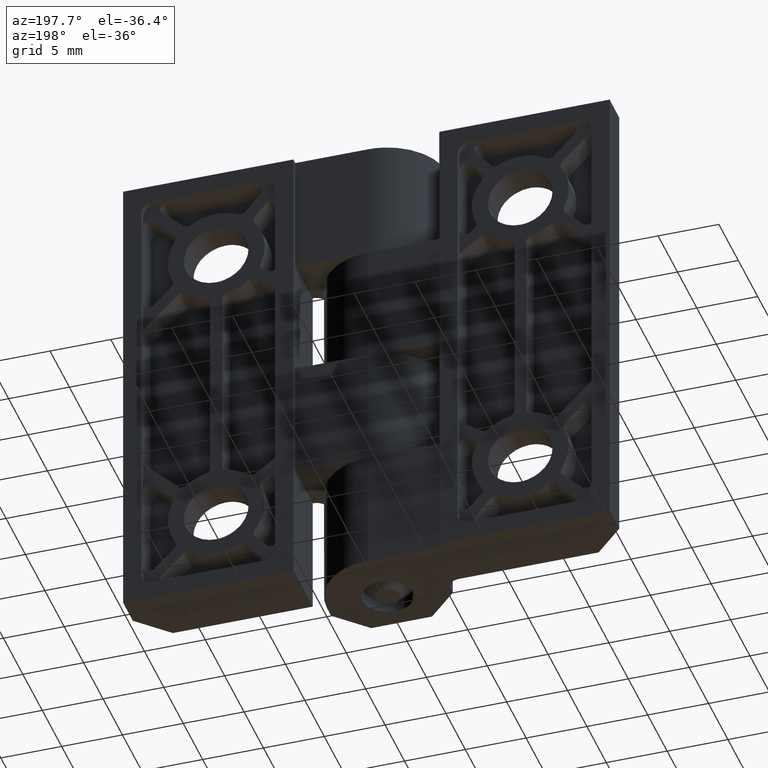
[diagram: clean part render]
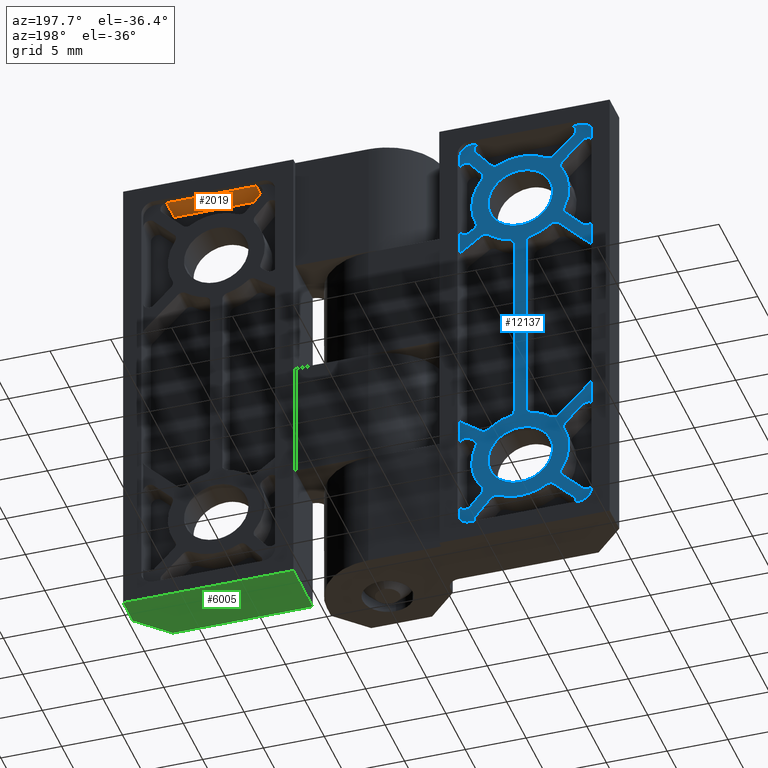
[diagram: same view with three faces highlighted in distinct colors, each labeled with its STEP entity id]
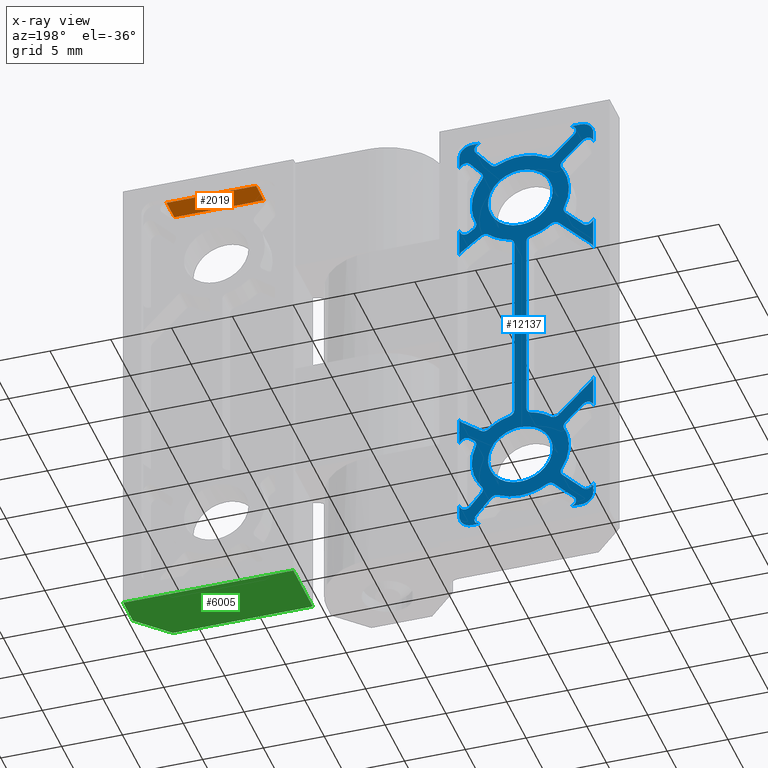
[diagram: x-ray of the same camera — body ghosted, the three highlighted faces saturated]
A machine part, auxiliary view with three faces highlighted in distinct colors.
The next image is the same camera in x-ray (body ghosted, the three faces saturated) — at least one of them is partly hidden behind the body in this view.
Their STEP definitions:

[orange] entity #2019 — the highlighted face is a freeform B-spline surface patch.
#1644=CARTESIAN_POINT('',(16.585786631691398,3.000000261236480,38.499951826151701));
#1645=VERTEX_POINT('',#1644);
#1646=CARTESIAN_POINT('',(9.218374790111112,3.000000261236480,38.499951826151751));
#1647=VERTEX_POINT('',#1646);
#1648=CARTESIAN_POINT('',(16.585786631691398,3.000000261236480,38.499951826151701));
#1649=CARTESIAN_POINT('',(9.218374790111112,3.000000261236480,38.499951826151751));
#1650=QUASI_UNIFORM_CURVE('',1,(#1648,#1649),.UNSPECIFIED.,.F.,.U.);
#1651=EDGE_CURVE('',#1645,#1647,#1650,.T.);
#1765=CARTESIAN_POINT('',(16.585786631691398,5.000000261236480,38.499951826151701));
#1766=VERTEX_POINT('',#1765);
#1790=CARTESIAN_POINT('',(16.585786631691398,3.000000261236480,38.499951826151701));
#1791=CARTESIAN_POINT('',(16.585786631691398,5.000000261236480,38.499951826151701));
#1792=QUASI_UNIFORM_CURVE('',1,(#1790,#1791),.UNSPECIFIED.,.F.,.U.);
#1793=EDGE_CURVE('',#1645,#1766,#1792,.T.);
#1977=CARTESIAN_POINT('',(9.218374790111112,5.000000261236480,38.499951826151751));
#1978=VERTEX_POINT('',#1977);
#1994=CARTESIAN_POINT('',(9.218374790111112,3.000000261236480,38.499951826151751));
#1995=CARTESIAN_POINT('',(9.218374790111112,5.000000261236480,38.499951826151751));
#1996=QUASI_UNIFORM_CURVE('',1,(#1994,#1995),.UNSPECIFIED.,.F.,.U.);
#1997=EDGE_CURVE('',#1647,#1978,#1996,.T.);
#2004=CARTESIAN_POINT('',(16.953789020057261,2.900100220418325,38.499951826151701));
#2005=CARTESIAN_POINT('',(8.850372928703605,2.900100220418325,38.499951826151701));
#2006=CARTESIAN_POINT('',(16.953789020057261,5.099900462987177,38.499951826151701));
#2007=CARTESIAN_POINT('',(8.850372928703605,5.099900462987177,38.499951826151701));
#2008=B_SPLINE_SURFACE_WITH_KNOTS('',1,1,((#2004,#2006),(#2005,#2007)),.UNSPECIFIED.,.F.,.F.,.U.,(2,2),(2,2),(0.0,8.103416091353656),(0.0,2.199800242568852),.UNSPECIFIED.);
#2009=CARTESIAN_POINT('',(9.218374790111112,5.000000261236480,38.499951826151751));
#2010=CARTESIAN_POINT('',(16.585786631691398,5.000000261236480,38.499951826151701));
#2011=QUASI_UNIFORM_CURVE('',1,(#2009,#2010),.UNSPECIFIED.,.F.,.U.);
#2012=EDGE_CURVE('',#1978,#1766,#2011,.T.);
#2013=ORIENTED_EDGE('',*,*,#2012,.T.);
#2014=ORIENTED_EDGE('',*,*,#1793,.F.);
#2015=ORIENTED_EDGE('',*,*,#1651,.T.);
#2016=ORIENTED_EDGE('',*,*,#1997,.T.);
#2017=EDGE_LOOP('',(#2013,#2014,#2015,#2016));
#2018=FACE_OUTER_BOUND('',#2017,.T.);
#2019=ADVANCED_FACE('',(#2018),#2008,.T.);

[blue] entity #12137 — the highlighted face is a freeform B-spline surface patch.
#6423=CARTESIAN_POINT('',(-9.855760772092205,5.000000261235510,32.325360294660051));
#6424=VERTEX_POINT('',#6423);
#6430=CARTESIAN_POINT('',(-12.499999406285960,5.000000261235510,29.850002011512931));
#6431=VERTEX_POINT('',#6430);
#6432=CARTESIAN_POINT('',(-12.499999406285960,5.000000261235510,29.850002011512931));
#6433=CARTESIAN_POINT('',(-10.019248158185874,5.000000261235509,29.850002011512927));
#6434=CARTESIAN_POINT('',(-9.855760772092204,5.000000261235510,32.325360294660051));
#6442=(BOUNDED_CURVE()B_SPLINE_CURVE(2,(#6432,#6433,#6434),.UNSPECIFIED.,.F.,.U.)B_SPLINE_CURVE_WITH_KNOTS((3,3),(0.500000000000000,0.738494527062576),.UNSPECIFIED.)CURVE()GEOMETRIC_REPRESENTATION_ITEM()RATIONAL_B_SPLINE_CURVE((1.0,0.720586281197000,0.974281704159737))REPRESENTATION_ITEM(''));
#6443=EDGE_CURVE('',#6431,#6424,#6442,.T.);
#6445=CARTESIAN_POINT('',(-15.149898034577230,5.000000261235510,32.523126858749450));
#6446=VERTEX_POINT('',#6445);
#6447=CARTESIAN_POINT('',(-15.149898034577227,5.000000261235511,32.523126858749450));
#6448=CARTESIAN_POINT('',(-15.149998938440184,5.000000261235510,32.511564421394922));
#6449=CARTESIAN_POINT('',(-15.149998938440181,5.000000261235510,32.500001543667153));
#6450=CARTESIAN_POINT('',(-15.149998938440183,5.000000261235510,29.850002011512931));
#6451=CARTESIAN_POINT('',(-12.499999406285960,5.000000261235510,29.850002011512931));
#6459=(BOUNDED_CURVE()B_SPLINE_CURVE(2,(#6447,#6448,#6449,#6450,#6451),.UNSPECIFIED.,.F.,.U.)B_SPLINE_CURVE_WITH_KNOTS((3,2,3),(0.248460105652479,0.250000000000000,0.500000000000000),.UNSPECIFIED.)CURVE()GEOMETRIC_REPRESENTATION_ITEM()RATIONAL_B_SPLINE_CURVE((0.996414028071399,0.998195901551688,1.0,0.707106781186548,1.0))REPRESENTATION_ITEM(''));
#6460=EDGE_CURVE('',#6446,#6431,#6459,.T.);
#6570=CARTESIAN_POINT('',(-12.499999406285960,5.000000261235510,35.150001075821379));
#6571=VERTEX_POINT('',#6570);
#6572=CARTESIAN_POINT('',(-12.499999406285960,5.000000261235510,35.150001075821379));
#6573=CARTESIAN_POINT('',(-15.126973650394945,5.000000261235509,35.150001075821372));
#6574=CARTESIAN_POINT('',(-15.149898034577229,5.000000261235510,32.523126858749457));
#6582=(BOUNDED_CURVE()B_SPLINE_CURVE(2,(#6572,#6573,#6574),.UNSPECIFIED.,.F.,.U.)B_SPLINE_CURVE_WITH_KNOTS((3,3),(0.0,0.248460105652479),.UNSPECIFIED.)CURVE()GEOMETRIC_REPRESENTATION_ITEM()RATIONAL_B_SPLINE_CURVE((1.0,0.708910879634860,0.996414028071398))REPRESENTATION_ITEM(''));
#6583=EDGE_CURVE('',#6571,#6446,#6582,.T.);
#6585=CARTESIAN_POINT('',(-9.855760772092205,5.000000261235510,32.325360294660044));
#6586=CARTESIAN_POINT('',(-9.849999874131735,5.000000261235510,32.412585901635296));
#6587=CARTESIAN_POINT('',(-9.849999874131735,5.000000261235510,32.500001543667153));
#6588=CARTESIAN_POINT('',(-9.849999874131735,5.000000261235510,35.150001075821379));
#6589=CARTESIAN_POINT('',(-12.499999406285960,5.000000261235510,35.150001075821379));
#6597=(BOUNDED_CURVE()B_SPLINE_CURVE(2,(#6585,#6586,#6587,#6588,#6589),.UNSPECIFIED.,.F.,.U.)B_SPLINE_CURVE_WITH_KNOTS((3,2,3),(0.738494527062576,0.750000000000000,1.0),.UNSPECIFIED.)CURVE()GEOMETRIC_REPRESENTATION_ITEM()RATIONAL_B_SPLINE_CURVE((0.974281704159736,0.986520499989547,1.0,0.707106781186548,1.0))REPRESENTATION_ITEM(''));
#6598=EDGE_CURVE('',#6424,#6571,#6597,.T.);
#6763=CARTESIAN_POINT('',(-9.855760772092205,5.000000261235510,7.325360294660075));
#6764=VERTEX_POINT('',#6763);
#6770=CARTESIAN_POINT('',(-12.499999406285960,5.000000261235510,4.850002011512955));
#6771=VERTEX_POINT('',#6770);
#6772=CARTESIAN_POINT('',(-12.499999406285960,5.000000261235510,4.850002011512955));
#6773=CARTESIAN_POINT('',(-10.019248158185874,5.000000261235509,4.850002011512955));
#6774=CARTESIAN_POINT('',(-9.855760772092204,5.000000261235510,7.325360294660076));
#6782=(BOUNDED_CURVE()B_SPLINE_CURVE(2,(#6772,#6773,#6774),.UNSPECIFIED.,.F.,.U.)B_SPLINE_CURVE_WITH_KNOTS((3,3),(0.500000000000000,0.738494527062576),.UNSPECIFIED.)CURVE()GEOMETRIC_REPRESENTATION_ITEM()RATIONAL_B_SPLINE_CURVE((1.0,0.720586281197000,0.974281704159737))REPRESENTATION_ITEM(''));
#6783=EDGE_CURVE('',#6771,#6764,#6782,.T.);
#6785=CARTESIAN_POINT('',(-15.149898034577230,5.000000261235510,7.523126858749480));
#6786=VERTEX_POINT('',#6785);
#6787=CARTESIAN_POINT('',(-15.149898034577229,5.000000261235510,7.523126858749480));
#6788=CARTESIAN_POINT('',(-15.149998938440186,5.000000261235511,7.511564421394951));
#6789=CARTESIAN_POINT('',(-15.149998938440181,5.000000261235510,7.500001543667180));
#6790=CARTESIAN_POINT('',(-15.149998938440183,5.000000261235510,4.850002011512956));
#6791=CARTESIAN_POINT('',(-12.499999406285960,5.000000261235510,4.850002011512955));
#6799=(BOUNDED_CURVE()B_SPLINE_CURVE(2,(#6787,#6788,#6789,#6790,#6791),.UNSPECIFIED.,.F.,.U.)B_SPLINE_CURVE_WITH_KNOTS((3,2,3),(0.248460105652479,0.250000000000000,0.500000000000000),.UNSPECIFIED.)CURVE()GEOMETRIC_REPRESENTATION_ITEM()RATIONAL_B_SPLINE_CURVE((0.996414028071398,0.998195901551687,1.0,0.707106781186548,1.0))REPRESENTATION_ITEM(''));
#6800=EDGE_CURVE('',#6786,#6771,#6799,.T.);
#6910=CARTESIAN_POINT('',(-12.499999406285960,5.000000261235510,10.150001075821409));
#6911=VERTEX_POINT('',#6910);
#6912=CARTESIAN_POINT('',(-12.499999406285960,5.000000261235510,10.150001075821409));
#6913=CARTESIAN_POINT('',(-15.126973650394957,5.000000261235509,10.150001075821406));
#6914=CARTESIAN_POINT('',(-15.149898034577229,5.000000261235510,7.523126858749480));
#6922=(BOUNDED_CURVE()B_SPLINE_CURVE(2,(#6912,#6913,#6914),.UNSPECIFIED.,.F.,.U.)B_SPLINE_CURVE_WITH_KNOTS((3,3),(0.0,0.248460105652479),.UNSPECIFIED.)CURVE()GEOMETRIC_REPRESENTATION_ITEM()RATIONAL_B_SPLINE_CURVE((1.0,0.708910879634860,0.996414028071398))REPRESENTATION_ITEM(''));
#6923=EDGE_CURVE('',#6911,#6786,#6922,.T.);
#6925=CARTESIAN_POINT('',(-9.855760772092205,5.000000261235510,7.325360294660075));
#6926=CARTESIAN_POINT('',(-9.849999874131735,5.000000261235510,7.412585901635321));
#6927=CARTESIAN_POINT('',(-9.849999874131735,5.000000261235510,7.500001543667180));
#6928=CARTESIAN_POINT('',(-9.849999874131735,5.000000261235510,10.150001075821406));
#6929=CARTESIAN_POINT('',(-12.499999406285960,5.000000261235510,10.150001075821409));
#6937=(BOUNDED_CURVE()B_SPLINE_CURVE(2,(#6925,#6926,#6927,#6928,#6929),.UNSPECIFIED.,.F.,.U.)B_SPLINE_CURVE_WITH_KNOTS((3,2,3),(0.738494527062576,0.750000000000000,1.0),.UNSPECIFIED.)CURVE()GEOMETRIC_REPRESENTATION_ITEM()RATIONAL_B_SPLINE_CURVE((0.974281704159736,0.986520499989547,1.0,0.707106781186548,1.0))REPRESENTATION_ITEM(''));
#6938=EDGE_CURVE('',#6764,#6911,#6937,.T.);
#7566=CARTESIAN_POINT('',(-8.384110444305001,5.000000261235480,36.658044005814013));
#7567=VERTEX_POINT('',#7566);
#7568=CARTESIAN_POINT('',(-7.499999762512689,5.000000261235480,36.337951790778952));
#7569=VERTEX_POINT('',#7568);
#7570=CARTESIAN_POINT('',(-8.384110444304982,5.000000261235480,36.658044005813991));
#7571=CARTESIAN_POINT('',(-8.159574530088690,5.000000261235480,36.927487102874629));
#7572=CARTESIAN_POINT('',(-7.829787146300674,5.000000261235480,36.808087601950923));
#7573=CARTESIAN_POINT('',(-7.499999762512656,5.000000261235480,36.688688101027232));
#7574=CARTESIAN_POINT('',(-7.499999762512656,5.000000261235480,36.337951790778952));
#7582=(BOUNDED_CURVE()B_SPLINE_CURVE(2,(#7570,#7571,#7572,#7573,#7574),.UNSPECIFIED.,.F.,.U.)B_SPLINE_CURVE_WITH_KNOTS((3,2,3),(0.0,0.500000000000000,1.0),.UNSPECIFIED.)CURVE()GEOMETRIC_REPRESENTATION_ITEM()RATIONAL_B_SPLINE_CURVE((1.0,0.818665152474466,1.0,0.818665152474466,1.0))REPRESENTATION_ITEM(''));
#7583=EDGE_CURVE('',#7567,#7569,#7582,.T.);
#7613=CARTESIAN_POINT('',(-7.499999762512660,5.000000261235480,30.408120219874149));
#7614=VERTEX_POINT('',#7613);
#7615=CARTESIAN_POINT('',(-8.297813748278690,5.000000261235480,30.006489957350251));
#7616=VERTEX_POINT('',#7615);
#7617=CARTESIAN_POINT('',(-7.499999762512652,5.000000261235480,30.408120219874149));
#7618=CARTESIAN_POINT('',(-7.499999762512652,5.000000261235480,30.100044573946821));
#7619=CARTESIAN_POINT('',(-7.775174258721695,5.000000261235480,29.961518041290979));
#7620=CARTESIAN_POINT('',(-8.050348754930738,5.000000261235480,29.822991508635159));
#7621=CARTESIAN_POINT('',(-8.297813748278690,5.000000261235480,30.006489957350251));
#7629=(BOUNDED_CURVE()B_SPLINE_CURVE(2,(#7617,#7618,#7619,#7620,#7621),.UNSPECIFIED.,.F.,.U.)B_SPLINE_CURVE_WITH_KNOTS((3,2,3),(0.0,0.500000000000000,1.0),.UNSPECIFIED.)CURVE()GEOMETRIC_REPRESENTATION_ITEM()RATIONAL_B_SPLINE_CURVE((1.0,0.851366852103748,1.0,0.851366852103748,1.0))REPRESENTATION_ITEM(''));
#7630=EDGE_CURVE('',#7614,#7616,#7629,.T.);
#7660=CARTESIAN_POINT('',(-9.320427463369331,5.000000261235480,34.926999690398603));
#7661=VERTEX_POINT('',#7660);
#7668=CARTESIAN_POINT('',(-8.837849622590928,5.000000261235480,30.891071423009048));
#7669=VERTEX_POINT('',#7668);
#7675=CARTESIAN_POINT('',(-9.320427463369331,5.000000261235480,34.926999690398603));
#7676=CARTESIAN_POINT('',(-7.888742703792310,5.000000261235480,33.051371746964804));
#7677=CARTESIAN_POINT('',(-8.837849622590918,5.000000261235480,30.891071423009048));
#7685=(BOUNDED_CURVE()B_SPLINE_CURVE(2,(#7675,#7676,#7677),.UNSPECIFIED.,.F.,.U.)CURVE()GEOMETRIC_REPRESENTATION_ITEM()QUASI_UNIFORM_CURVE()RATIONAL_B_SPLINE_CURVE((1.0,0.861307175329588,1.0))REPRESENTATION_ITEM(''));
#7686=EDGE_CURVE('',#7661,#7669,#7685,.T.);
#7705=CARTESIAN_POINT('',(-9.307091554334901,5.000000261235480,35.550466673776448));
#7706=VERTEX_POINT('',#7705);
#7707=CARTESIAN_POINT('',(-9.320427463369338,5.000000261235480,34.926999690398603));
#7708=CARTESIAN_POINT('',(-9.562436807753469,5.000000261235479,35.244052369671607));
#7709=CARTESIAN_POINT('',(-9.307091554334901,5.000000261235480,35.550466673776448));
#7717=(BOUNDED_CURVE()B_SPLINE_CURVE(2,(#7707,#7708,#7709),.UNSPECIFIED.,.F.,.U.)CURVE()GEOMETRIC_REPRESENTATION_ITEM()QUASI_UNIFORM_CURVE()RATIONAL_B_SPLINE_CURVE((1.0,0.781735959970853,1.0))REPRESENTATION_ITEM(''));
#7718=EDGE_CURVE('',#7661,#7706,#7717,.T.);
#7735=CARTESIAN_POINT('',(-9.307091554334901,5.000000261235480,35.550466673776448));
#7736=CARTESIAN_POINT('',(-8.384110444305001,5.000000261235480,36.658044005814013));
#7737=QUASI_UNIFORM_CURVE('',1,(#7735,#7736),.UNSPECIFIED.,.F.,.U.);
#7738=EDGE_CURVE('',#7706,#7567,#7737,.T.);
#7751=CARTESIAN_POINT('',(-8.677894787431601,5.000000261235480,30.288324895403051));
#7752=VERTEX_POINT('',#7751);
#7753=CARTESIAN_POINT('',(-8.297813748278690,5.000000261235480,30.006489957350251));
#7754=CARTESIAN_POINT('',(-8.677894787431601,5.000000261235480,30.288324895403051));
#7755=QUASI_UNIFORM_CURVE('',1,(#7753,#7754),.UNSPECIFIED.,.F.,.U.);
#7756=EDGE_CURVE('',#7616,#7752,#7755,.T.);
#7782=CARTESIAN_POINT('',(-8.677894787431601,5.000000261235480,30.288324895403051));
#7783=CARTESIAN_POINT('',(-8.998284901120217,5.000000261235480,30.525898250927764));
#7784=CARTESIAN_POINT('',(-8.837849622590928,5.000000261235480,30.891071423009048));
#7792=(BOUNDED_CURVE()B_SPLINE_CURVE(2,(#7782,#7783,#7784),.UNSPECIFIED.,.F.,.U.)CURVE()GEOMETRIC_REPRESENTATION_ITEM()QUASI_UNIFORM_CURVE()RATIONAL_B_SPLINE_CURVE((1.0,0.781735959969677,1.0))REPRESENTATION_ITEM(''));
#7793=EDGE_CURVE('',#7752,#7669,#7792,.T.);
#7955=CARTESIAN_POINT('',(-9.211303722135449,5.000000261235480,38.499951826151701));
#7956=VERTEX_POINT('',#7955);
#7957=CARTESIAN_POINT('',(-8.834264132071661,5.000000261235480,37.679909589863200));
#7958=VERTEX_POINT('',#7957);
#7959=CARTESIAN_POINT('',(-9.211303722135449,5.000000261235480,38.499951826151687));
#7960=CARTESIAN_POINT('',(-8.895873208709617,5.000000261235480,38.495490519006459));
#7961=CARTESIAN_POINT('',(-8.764091725253694,5.000000261235480,38.208872388596511));
#7962=CARTESIAN_POINT('',(-8.632310241797773,5.000000261235480,37.922254258186591));
#7963=CARTESIAN_POINT('',(-8.834264132071670,5.000000261235480,37.679909589863207));
#7971=(BOUNDED_CURVE()B_SPLINE_CURVE(2,(#7959,#7960,#7961,#7962,#7963),.UNSPECIFIED.,.F.,.U.)B_SPLINE_CURVE_WITH_KNOTS((3,2,3),(0.0,0.500000000000000,1.0),.UNSPECIFIED.)CURVE()GEOMETRIC_REPRESENTATION_ITEM()RATIONAL_B_SPLINE_CURVE((1.0,0.845738859178828,1.0,0.845738859178828,1.0))REPRESENTATION_ITEM(''));
#7972=EDGE_CURVE('',#7956,#7958,#7971,.T.);
#8022=CARTESIAN_POINT('',(-16.939340039077699,5.000000261235480,37.646448397516849));
#8023=VERTEX_POINT('',#8022);
#8024=CARTESIAN_POINT('',(-16.592857699666151,5.000000261235480,38.499951826151701));
#8025=VERTEX_POINT('',#8024);
#8026=CARTESIAN_POINT('',(-16.939340039077699,5.000000261235480,37.646448397516849));
#8027=CARTESIAN_POINT('',(-17.173772988639964,5.000000261235481,37.880881347079409));
#8028=CARTESIAN_POINT('',(-17.049067894781249,5.000000261235480,38.188072257177282));
#8029=CARTESIAN_POINT('',(-16.924362800922530,5.000000261235481,38.495263167275141));
#8030=CARTESIAN_POINT('',(-16.592857699666151,5.000000261235480,38.499951826151687));
#8038=(BOUNDED_CURVE()B_SPLINE_CURVE(2,(#8026,#8027,#8028,#8029,#8030),.UNSPECIFIED.,.F.,.U.)B_SPLINE_CURVE_WITH_KNOTS((3,2,3),(0.0,0.500000000000000,1.0),.UNSPECIFIED.)CURVE()GEOMETRIC_REPRESENTATION_ITEM()RATIONAL_B_SPLINE_CURVE((1.0,0.833428714012474,1.0,0.833428714012474,1.0))REPRESENTATION_ITEM(''));
#8039=EDGE_CURVE('',#8023,#8025,#8038,.T.);
#8078=CARTESIAN_POINT('',(-15.248865151468349,5.000000261235480,35.955973509907700));
#8079=VERTEX_POINT('',#8078);
#8085=CARTESIAN_POINT('',(-16.939340039077699,5.000000261235480,37.646448397516849));
#8086=CARTESIAN_POINT('',(-15.248865151468349,5.000000261235480,35.955973509907700));
#8087=QUASI_UNIFORM_CURVE('',1,(#8085,#8086),.UNSPECIFIED.,.F.,.U.);
#8088=EDGE_CURVE('',#8023,#8079,#8087,.T.);
#8107=CARTESIAN_POINT('',(-14.629165994739880,5.000000261235480,35.886246320224501));
#8108=VERTEX_POINT('',#8107);
#8109=CARTESIAN_POINT('',(-14.629165994739880,5.000000261235480,35.886246320224501));
#8110=CARTESIAN_POINT('',(-14.966827100663364,5.000000261235479,35.673935459102708));
#8111=CARTESIAN_POINT('',(-15.248865151468360,5.000000261235480,35.955973509907693));
#8119=(BOUNDED_CURVE()B_SPLINE_CURVE(2,(#8109,#8110,#8111),.UNSPECIFIED.,.F.,.U.)CURVE()GEOMETRIC_REPRESENTATION_ITEM()QUASI_UNIFORM_CURVE()RATIONAL_B_SPLINE_CURVE((1.0,0.781735959970549,1.0))REPRESENTATION_ITEM(''));
#8120=EDGE_CURVE('',#8108,#8079,#8119,.T.);
#8148=CARTESIAN_POINT('',(-10.686154247524239,5.000000261235480,36.065105343859152));
#8149=VERTEX_POINT('',#8148);
#8155=CARTESIAN_POINT('',(-14.629165994739870,5.000000261235480,35.886246320224480));
#8156=CARTESIAN_POINT('',(-12.708387201172748,5.000000261235480,37.093972624888842));
#8157=CARTESIAN_POINT('',(-10.686154247524209,5.000000261235480,36.065105343859223));
#8165=(BOUNDED_CURVE()B_SPLINE_CURVE(2,(#8155,#8156,#8157),.UNSPECIFIED.,.F.,.U.)CURVE()GEOMETRIC_REPRESENTATION_ITEM()QUASI_UNIFORM_CURVE()RATIONAL_B_SPLINE_CURVE((1.0,0.869812024331090,1.0))REPRESENTATION_ITEM(''));
#8166=EDGE_CURVE('',#8108,#8149,#8165,.T.);
#8185=CARTESIAN_POINT('',(-10.075312870421980,5.000000261235480,36.190651103847152));
#8186=VERTEX_POINT('',#8185);
#8187=CARTESIAN_POINT('',(-10.075312870421991,5.000000261235480,36.190651103847159));
#8188=CARTESIAN_POINT('',(-10.330658123842095,5.000000261235480,35.884236799743348));
#8189=CARTESIAN_POINT('',(-10.686154247524239,5.000000261235480,36.065105343859152));
#8197=(BOUNDED_CURVE()B_SPLINE_CURVE(2,(#8187,#8188,#8189),.UNSPECIFIED.,.F.,.U.)CURVE()GEOMETRIC_REPRESENTATION_ITEM()QUASI_UNIFORM_CURVE()RATIONAL_B_SPLINE_CURVE((1.0,0.781735959970696,1.0))REPRESENTATION_ITEM(''));
#8198=EDGE_CURVE('',#8186,#8149,#8197,.T.);
#8218=CARTESIAN_POINT('',(-10.075312870421980,5.000000261235480,36.190651103847152));
#8219=CARTESIAN_POINT('',(-8.834264132071661,5.000000261235480,37.679909589863200));
#8220=QUASI_UNIFORM_CURVE('',1,(#8218,#8219),.UNSPECIFIED.,.F.,.U.);
#8221=EDGE_CURVE('',#8186,#7958,#8220,.T.);
#8352=CARTESIAN_POINT('',(-17.646446853849049,5.000000261235480,28.767768319363050));
#8353=VERTEX_POINT('',#8352);
#8354=CARTESIAN_POINT('',(-18.500000284984701,5.000000261235480,29.121321726748452));
#8355=VERTEX_POINT('',#8354);
#8356=CARTESIAN_POINT('',(-17.646446853849060,5.000000261235480,28.767768319363061));
#8357=CARTESIAN_POINT('',(-17.882683688027839,5.000000261235480,28.531531485183255));
#8358=CARTESIAN_POINT('',(-18.191341986506291,5.000000261235480,28.659381938551629));
#8359=CARTESIAN_POINT('',(-18.500000284984726,5.000000261235480,28.787232391920014));
#8360=CARTESIAN_POINT('',(-18.500000284984729,5.000000261235480,29.121321726748452));
#8368=(BOUNDED_CURVE()B_SPLINE_CURVE(2,(#8356,#8357,#8358,#8359,#8360),.UNSPECIFIED.,.F.,.U.)B_SPLINE_CURVE_WITH_KNOTS((3,2,3),(0.0,0.500000000000000,1.0),.UNSPECIFIED.)CURVE()GEOMETRIC_REPRESENTATION_ITEM()RATIONAL_B_SPLINE_CURVE((1.0,0.831469612302241,1.0,0.831469612302241,1.0))REPRESENTATION_ITEM(''));
#8369=EDGE_CURVE('',#8353,#8355,#8368,.T.);
#8403=CARTESIAN_POINT('',(-18.500000284984701,5.000000261235480,36.585788175358552));
#8404=VERTEX_POINT('',#8403);
#8405=CARTESIAN_POINT('',(-17.646446894391399,5.000000261235480,36.939341623286147));
#8406=VERTEX_POINT('',#8405);
#8407=CARTESIAN_POINT('',(-18.500000284984729,5.000000261235480,36.585788175358552));
#8408=CARTESIAN_POINT('',(-18.500000284984729,5.000000261235480,36.919877489453597));
#8409=CARTESIAN_POINT('',(-18.191342012991800,5.000000261235480,37.047727952584708));
#8410=CARTESIAN_POINT('',(-17.882683740998878,5.000000261235480,37.175578415715826));
#8411=CARTESIAN_POINT('',(-17.646446894391339,5.000000261235480,36.939341623286211));
#8419=(BOUNDED_CURVE()B_SPLINE_CURVE(2,(#8407,#8408,#8409,#8410,#8411),.UNSPECIFIED.,.F.,.U.)B_SPLINE_CURVE_WITH_KNOTS((3,2,3),(0.0,0.500000000000000,1.0),.UNSPECIFIED.)CURVE()GEOMETRIC_REPRESENTATION_ITEM()RATIONAL_B_SPLINE_CURVE((1.0,0.831469628229170,1.0,0.831469628229170,1.0))REPRESENTATION_ITEM(''));
#8420=EDGE_CURVE('',#8404,#8406,#8419,.T.);
#8441=CARTESIAN_POINT('',(-16.207106957265601,5.000000261235510,30.207108215948050));
#8442=VERTEX_POINT('',#8441);
#8443=CARTESIAN_POINT('',(-16.207106957265601,5.000000261235510,30.207108215948050));
#8444=CARTESIAN_POINT('',(-17.646446853849049,5.000000261235480,28.767768319363050));
#8445=QUASI_UNIFORM_CURVE('',1,(#8443,#8444),.UNSPECIFIED.,.F.,.U.);
#8446=EDGE_CURVE('',#8442,#8353,#8445,.T.);
#8463=CARTESIAN_POINT('',(-15.955971952844800,5.000000261235480,35.248866681739443));
#8464=VERTEX_POINT('',#8463);
#8465=CARTESIAN_POINT('',(-17.646446894391399,5.000000261235480,36.939341623286147));
#8466=CARTESIAN_POINT('',(-15.955971952844800,5.000000261235480,35.248866681739443));
#8467=QUASI_UNIFORM_CURVE('',1,(#8465,#8466),.UNSPECIFIED.,.F.,.U.);
#8468=EDGE_CURVE('',#8406,#8464,#8467,.T.);
#8494=CARTESIAN_POINT('',(-15.886244767593650,5.000000261235480,34.629167552662949));
#8495=VERTEX_POINT('',#8494);
#8496=CARTESIAN_POINT('',(-15.955971952844800,5.000000261235480,35.248866681739443));
#8497=CARTESIAN_POINT('',(-15.673933914218130,5.000000261235480,34.966828643112727));
#8498=CARTESIAN_POINT('',(-15.886244767593650,5.000000261235480,34.629167552662949));
#8506=(BOUNDED_CURVE()B_SPLINE_CURVE(2,(#8496,#8497,#8498),.UNSPECIFIED.,.F.,.U.)CURVE()GEOMETRIC_REPRESENTATION_ITEM()QUASI_UNIFORM_CURVE()RATIONAL_B_SPLINE_CURVE((1.0,0.781735958657899,1.0))REPRESENTATION_ITEM(''));
#8507=EDGE_CURVE('',#8464,#8495,#8506,.T.);
#8533=CARTESIAN_POINT('',(-16.109475879689700,5.000000261235480,30.776143836703898));
#8534=VERTEX_POINT('',#8533);
#8542=CARTESIAN_POINT('',(-16.109475879689711,5.000000261235480,30.776143836703898));
#8543=CARTESIAN_POINT('',(-17.058922686209563,5.000000261235480,32.764130045390957));
#8544=CARTESIAN_POINT('',(-15.886244767593640,5.000000261235480,34.629167552662949));
#8552=(BOUNDED_CURVE()B_SPLINE_CURVE(2,(#8542,#8543,#8544),.UNSPECIFIED.,.F.,.U.)CURVE()GEOMETRIC_REPRESENTATION_ITEM()QUASI_UNIFORM_CURVE()RATIONAL_B_SPLINE_CURVE((1.0,0.875931446463721,1.0))REPRESENTATION_ITEM(''));
#8553=EDGE_CURVE('',#8534,#8495,#8552,.T.);
#8572=CARTESIAN_POINT('',(-16.109475879689700,5.000000261235480,30.776143836703898));
#8573=CARTESIAN_POINT('',(-15.957106945390480,5.000000261235479,30.457108227821635));
#8574=CARTESIAN_POINT('',(-16.207106957265601,5.000000261235510,30.207108215948050));
#8582=(BOUNDED_CURVE()B_SPLINE_CURVE(2,(#8572,#8573,#8574),.UNSPECIFIED.,.F.,.U.)CURVE()GEOMETRIC_REPRESENTATION_ITEM()QUASI_UNIFORM_CURVE()RATIONAL_B_SPLINE_CURVE((1.0,0.816496580927737,1.0))REPRESENTATION_ITEM(''));
#8583=EDGE_CURVE('',#8534,#8442,#8582,.T.);
#8761=CARTESIAN_POINT('',(-7.499999762512689,5.000000261235480,12.081684120187200));
#8762=VERTEX_POINT('',#8761);
#8763=CARTESIAN_POINT('',(-7.702185814639230,5.000000261235480,11.680053876739279));
#8764=VERTEX_POINT('',#8763);
#8765=CARTESIAN_POINT('',(-7.499999762512688,5.000000261235480,12.081684120187200));
#8766=CARTESIAN_POINT('',(-7.499999762512688,5.000000261235480,11.829977413054259));
#8767=CARTESIAN_POINT('',(-7.702185814639236,5.000000261235480,11.680053876739290));
#8775=(BOUNDED_CURVE()B_SPLINE_CURVE(2,(#8765,#8766,#8767),.UNSPECIFIED.,.F.,.U.)CURVE()GEOMETRIC_REPRESENTATION_ITEM()QUASI_UNIFORM_CURVE()RATIONAL_B_SPLINE_CURVE((1.0,0.893204314741847,1.0))REPRESENTATION_ITEM(''));
#8776=EDGE_CURVE('',#8762,#8764,#8775,.T.);
#8806=CARTESIAN_POINT('',(-7.702185814639210,5.000000261235480,28.319848018158449));
#8807=VERTEX_POINT('',#8806);
#8808=CARTESIAN_POINT('',(-7.499999762512670,5.000000261235480,27.918217774710548));
#8809=VERTEX_POINT('',#8808);
#8810=CARTESIAN_POINT('',(-7.702185814639207,5.000000261235480,28.319848018158460));
#8811=CARTESIAN_POINT('',(-7.499999762512670,5.000000261235480,28.169924481843477));
#8812=CARTESIAN_POINT('',(-7.499999762512670,5.000000261235480,27.918217774710548));
#8820=(BOUNDED_CURVE()B_SPLINE_CURVE(2,(#8810,#8811,#8812),.UNSPECIFIED.,.F.,.U.)CURVE()GEOMETRIC_REPRESENTATION_ITEM()QUASI_UNIFORM_CURVE()RATIONAL_B_SPLINE_CURVE((1.0,0.893204314741853,1.0))REPRESENTATION_ITEM(''));
#8821=EDGE_CURVE('',#8807,#8809,#8820,.T.);
#8851=CARTESIAN_POINT('',(-11.611111085309959,5.000000261235480,11.399934714886500));
#8852=VERTEX_POINT('',#8851);
#8853=CARTESIAN_POINT('',(-11.999999976251200,5.000000261235480,11.887432736876059));
#8854=VERTEX_POINT('',#8853);
#8855=CARTESIAN_POINT('',(-11.611111085309959,5.000000261235480,11.399934714886500));
#8856=CARTESIAN_POINT('',(-11.999999976251200,5.000000261235480,11.488570717545068));
#8857=CARTESIAN_POINT('',(-11.999999976251200,5.000000261235480,11.887432736876059));
#8865=(BOUNDED_CURVE()B_SPLINE_CURVE(2,(#8855,#8856,#8857),.UNSPECIFIED.,.F.,.U.)CURVE()GEOMETRIC_REPRESENTATION_ITEM()QUASI_UNIFORM_CURVE()RATIONAL_B_SPLINE_CURVE((1.0,0.781735958657884,1.0))REPRESENTATION_ITEM(''));
#8866=EDGE_CURVE('',#8852,#8854,#8865,.T.);
#8898=CARTESIAN_POINT('',(-9.896743696986249,5.000000261235480,10.536899174626081));
#8899=VERTEX_POINT('',#8898);
#8905=CARTESIAN_POINT('',(-11.611111085309959,5.000000261235480,11.399934714886509));
#8906=CARTESIAN_POINT('',(-10.647283724101190,5.000000261235480,11.180258075773132));
#8907=CARTESIAN_POINT('',(-9.896743696986253,5.000000261235480,10.536899174626081));
#8915=(BOUNDED_CURVE()B_SPLINE_CURVE(2,(#8905,#8906,#8907),.UNSPECIFIED.,.F.,.U.)CURVE()GEOMETRIC_REPRESENTATION_ITEM()QUASI_UNIFORM_CURVE()RATIONAL_B_SPLINE_CURVE((1.0,0.970793123430929,1.0))REPRESENTATION_ITEM(''));
#8916=EDGE_CURVE('',#8852,#8899,#8915,.T.);
#8935=CARTESIAN_POINT('',(-9.273522726692089,5.000000261235480,10.514887515759160));
#8936=VERTEX_POINT('',#8935);
#8937=CARTESIAN_POINT('',(-9.273522726692104,5.000000261235480,10.514887515759179));
#8938=CARTESIAN_POINT('',(-9.593912826543638,5.000000261235480,10.277314170492108));
#8939=CARTESIAN_POINT('',(-9.896743696986244,5.000000261235480,10.536899174626090));
#8947=(BOUNDED_CURVE()B_SPLINE_CURVE(2,(#8937,#8938,#8939),.UNSPECIFIED.,.F.,.U.)CURVE()GEOMETRIC_REPRESENTATION_ITEM()QUASI_UNIFORM_CURVE()RATIONAL_B_SPLINE_CURVE((1.0,0.781735958658393,1.0))REPRESENTATION_ITEM(''));
#8948=EDGE_CURVE('',#8936,#8899,#8947,.T.);
#8968=CARTESIAN_POINT('',(-9.273522726692089,5.000000261235480,10.514887515759160));
#8969=CARTESIAN_POINT('',(-7.702185814639230,5.000000261235480,11.680053876739279));
#8970=QUASI_UNIFORM_CURVE('',1,(#8968,#8969),.UNSPECIFIED.,.F.,.U.);
#8971=EDGE_CURVE('',#8936,#8764,#8970,.T.);
#8983=CARTESIAN_POINT('',(-9.273522726692050,5.000000261235480,29.485014379138601));
#8984=VERTEX_POINT('',#8983);
#8990=CARTESIAN_POINT('',(-7.702185814639210,5.000000261235480,28.319848018158449));
#8991=CARTESIAN_POINT('',(-9.273522726692050,5.000000261235480,29.485014379138601));
#8992=QUASI_UNIFORM_CURVE('',1,(#8990,#8991),.UNSPECIFIED.,.F.,.U.);
#8993=EDGE_CURVE('',#8807,#8984,#8992,.T.);
#9012=CARTESIAN_POINT('',(-9.896743696986238,5.000000261235480,29.463002720271700));
#9013=VERTEX_POINT('',#9012);
#9014=CARTESIAN_POINT('',(-9.896743696986233,5.000000261235480,29.463002720271700));
#9015=CARTESIAN_POINT('',(-9.593912826543608,5.000000261235480,29.722587724405720));
#9016=CARTESIAN_POINT('',(-9.273522726692047,5.000000261235480,29.485014379138612));
#9024=(BOUNDED_CURVE()B_SPLINE_CURVE(2,(#9014,#9015,#9016),.UNSPECIFIED.,.F.,.U.)CURVE()GEOMETRIC_REPRESENTATION_ITEM()QUASI_UNIFORM_CURVE()RATIONAL_B_SPLINE_CURVE((1.0,0.781735958658354,1.0))REPRESENTATION_ITEM(''));
#9025=EDGE_CURVE('',#9013,#8984,#9024,.T.);
#9053=CARTESIAN_POINT('',(-11.611111085309959,5.000000261235480,28.599967180011252));
#9054=VERTEX_POINT('',#9053);
#9060=CARTESIAN_POINT('',(-9.896743696986224,5.000000261235480,29.463002720271689));
#9061=CARTESIAN_POINT('',(-10.647283724101159,5.000000261235480,28.819643819124614));
#9062=CARTESIAN_POINT('',(-11.611111085309959,5.000000261235480,28.599967180011230));
#9070=(BOUNDED_CURVE()B_SPLINE_CURVE(2,(#9060,#9061,#9062),.UNSPECIFIED.,.F.,.U.)CURVE()GEOMETRIC_REPRESENTATION_ITEM()QUASI_UNIFORM_CURVE()RATIONAL_B_SPLINE_CURVE((1.0,0.970793123430928,1.0))REPRESENTATION_ITEM(''));
#9071=EDGE_CURVE('',#9013,#9054,#9070,.T.);
#9090=CARTESIAN_POINT('',(-11.999999976251200,5.000000261235480,28.112469158021700));
#9091=VERTEX_POINT('',#9090);
#9092=CARTESIAN_POINT('',(-11.999999976251200,5.000000261235480,28.112469158021700));
#9093=CARTESIAN_POINT('',(-11.999999976251200,5.000000261235480,28.511331177352684));
#9094=CARTESIAN_POINT('',(-11.611111085309959,5.000000261235480,28.599967180011259));
#9102=(BOUNDED_CURVE()B_SPLINE_CURVE(2,(#9092,#9093,#9094),.UNSPECIFIED.,.F.,.U.)CURVE()GEOMETRIC_REPRESENTATION_ITEM()QUASI_UNIFORM_CURVE()RATIONAL_B_SPLINE_CURVE((1.0,0.781735958657885,1.0))REPRESENTATION_ITEM(''));
#9103=EDGE_CURVE('',#9091,#9054,#9102,.T.);
#9123=CARTESIAN_POINT('',(-11.999999976251200,5.000000261235480,28.112469158021700));
#9124=CARTESIAN_POINT('',(-11.999999976251200,5.000000261235480,11.887432736876059));
#9125=QUASI_UNIFORM_CURVE('',1,(#9123,#9124),.UNSPECIFIED.,.F.,.U.);
#9126=EDGE_CURVE('',#9091,#8854,#9125,.T.);
#9301=CARTESIAN_POINT('',(-18.353553675577949,5.000000261235480,13.353504029312720));
#9302=VERTEX_POINT('',#9301);
#9303=CARTESIAN_POINT('',(-18.500000284984701,5.000000261235480,13.707057419906000));
#9304=VERTEX_POINT('',#9303);
#9305=CARTESIAN_POINT('',(-18.353553675577938,5.000000261235480,13.353504029312740));
#9306=CARTESIAN_POINT('',(-18.500000284984662,5.000000261235480,13.499950638719458));
#9307=CARTESIAN_POINT('',(-18.500000284984662,5.000000261235480,13.707057419906000));
#9315=(BOUNDED_CURVE()B_SPLINE_CURVE(2,(#9305,#9306,#9307),.UNSPECIFIED.,.F.,.U.)CURVE()GEOMETRIC_REPRESENTATION_ITEM()QUASI_UNIFORM_CURVE()RATIONAL_B_SPLINE_CURVE((1.0,0.923879532511293,1.0))REPRESENTATION_ITEM(''));
#9316=EDGE_CURVE('',#9302,#9304,#9315,.T.);
#9346=CARTESIAN_POINT('',(-18.500000284984662,5.000000261235480,26.292844474991799));
#9347=VERTEX_POINT('',#9346);
#9348=CARTESIAN_POINT('',(-18.353553675577949,5.000000261235480,26.646397865585051));
#9349=VERTEX_POINT('',#9348);
#9350=CARTESIAN_POINT('',(-18.500000284984662,5.000000261235480,26.292844474991799));
#9351=CARTESIAN_POINT('',(-18.500000284984658,5.000000261235479,26.499951256178328));
#9352=CARTESIAN_POINT('',(-18.353553675577949,5.000000261235480,26.646397865585051));
#9360=(BOUNDED_CURVE()B_SPLINE_CURVE(2,(#9350,#9351,#9352),.UNSPECIFIED.,.F.,.U.)CURVE()GEOMETRIC_REPRESENTATION_ITEM()QUASI_UNIFORM_CURVE()RATIONAL_B_SPLINE_CURVE((1.0,0.923879532511301,1.0))REPRESENTATION_ITEM(''));
#9361=EDGE_CURVE('',#9347,#9349,#9360,.T.);
#9391=CARTESIAN_POINT('',(-14.996643928512000,5.000000261235480,10.625133646618121));
#9392=VERTEX_POINT('',#9391);
#9399=CARTESIAN_POINT('',(-13.388888914689939,5.000000261235480,11.399934714886520));
#9400=VERTEX_POINT('',#9399);
#9406=CARTESIAN_POINT('',(-14.996643928512009,5.000000261235480,10.625133646618140));
#9407=CARTESIAN_POINT('',(-14.281425537195629,5.000000261235480,11.196506742815133));
#9408=CARTESIAN_POINT('',(-13.388888914689939,5.000000261235480,11.399934714886530));
#9416=(BOUNDED_CURVE()B_SPLINE_CURVE(2,(#9406,#9407,#9408),.UNSPECIFIED.,.F.,.U.)CURVE()GEOMETRIC_REPRESENTATION_ITEM()QUASI_UNIFORM_CURVE()RATIONAL_B_SPLINE_CURVE((1.0,0.974798115498771,1.0))REPRESENTATION_ITEM(''));
#9417=EDGE_CURVE('',#9392,#9400,#9416,.T.);
#9436=CARTESIAN_POINT('',(-15.662277795346251,5.000000261235480,10.662228149081001));
#9437=VERTEX_POINT('',#9436);
#9438=CARTESIAN_POINT('',(-14.996643928512031,5.000000261235480,10.625133646618149));
#9439=CARTESIAN_POINT('',(-15.346050027827623,5.000000261235479,10.346000381562408));
#9440=CARTESIAN_POINT('',(-15.662277795346251,5.000000261235480,10.662228149081001));
#9448=(BOUNDED_CURVE()B_SPLINE_CURVE(2,(#9438,#9439,#9440),.UNSPECIFIED.,.F.,.U.)CURVE()GEOMETRIC_REPRESENTATION_ITEM()QUASI_UNIFORM_CURVE()RATIONAL_B_SPLINE_CURVE((1.0,0.745355990926720,1.0))REPRESENTATION_ITEM(''));
#9449=EDGE_CURVE('',#9392,#9437,#9448,.T.);
#9466=CARTESIAN_POINT('',(-15.662277795346251,5.000000261235480,10.662228149081001));
#9467=CARTESIAN_POINT('',(-18.353553675577949,5.000000261235480,13.353504029312720));
#9468=QUASI_UNIFORM_CURVE('',1,(#9466,#9467),.UNSPECIFIED.,.F.,.U.);
#9469=EDGE_CURVE('',#9437,#9302,#9468,.T.);
#9482=CARTESIAN_POINT('',(-15.662277795346251,5.000000261235480,29.337673745816751));
#9483=VERTEX_POINT('',#9482);
#9484=CARTESIAN_POINT('',(-18.353553675577949,5.000000261235480,26.646397865585051));
#9485=CARTESIAN_POINT('',(-15.662277795346251,5.000000261235480,29.337673745816751));
#9486=QUASI_UNIFORM_CURVE('',1,(#9484,#9485),.UNSPECIFIED.,.F.,.U.);
#9487=EDGE_CURVE('',#9349,#9483,#9486,.T.);
#9513=CARTESIAN_POINT('',(-14.996643928512020,5.000000261235480,29.374768248279601));
#9514=VERTEX_POINT('',#9513);
#9515=CARTESIAN_POINT('',(-15.662277795346251,5.000000261235480,29.337673745816751));
#9516=CARTESIAN_POINT('',(-15.346050027827619,5.000000261235480,29.653901513335342));
#9517=CARTESIAN_POINT('',(-14.996643928512020,5.000000261235480,29.374768248279601));
#9525=(BOUNDED_CURVE()B_SPLINE_CURVE(2,(#9515,#9516,#9517),.UNSPECIFIED.,.F.,.U.)CURVE()GEOMETRIC_REPRESENTATION_ITEM()QUASI_UNIFORM_CURVE()RATIONAL_B_SPLINE_CURVE((1.0,0.745355990926718,1.0))REPRESENTATION_ITEM(''));
#9526=EDGE_CURVE('',#9483,#9514,#9525,.T.);
#9552=CARTESIAN_POINT('',(-13.388888914689939,5.000000261235480,28.599967180011198));
#9553=VERTEX_POINT('',#9552);
#9561=CARTESIAN_POINT('',(-13.388888914689939,5.000000261235480,28.599967180011209));
#9562=CARTESIAN_POINT('',(-14.281425537195624,5.000000261235480,28.803395152082611));
#9563=CARTESIAN_POINT('',(-14.996643928512020,5.000000261235480,29.374768248279601));
#9571=(BOUNDED_CURVE()B_SPLINE_CURVE(2,(#9561,#9562,#9563),.UNSPECIFIED.,.F.,.U.)CURVE()GEOMETRIC_REPRESENTATION_ITEM()QUASI_UNIFORM_CURVE()RATIONAL_B_SPLINE_CURVE((1.0,0.974798115498771,1.0))REPRESENTATION_ITEM(''));
#9572=EDGE_CURVE('',#9553,#9514,#9571,.T.);
#9591=CARTESIAN_POINT('',(-13.000000023748701,5.000000261235480,28.112469158021650));
#9592=VERTEX_POINT('',#9591);
#9593=CARTESIAN_POINT('',(-13.388888914689939,5.000000261235480,28.599967180011209));
#9594=CARTESIAN_POINT('',(-13.000000023748701,5.000000261235479,28.511331177352648));
#9595=CARTESIAN_POINT('',(-13.000000023748701,5.000000261235480,28.112469158021650));
#9603=(BOUNDED_CURVE()B_SPLINE_CURVE(2,(#9593,#9594,#9595),.UNSPECIFIED.,.F.,.U.)CURVE()GEOMETRIC_REPRESENTATION_ITEM()QUASI_UNIFORM_CURVE()RATIONAL_B_SPLINE_CURVE((1.0,0.781735958657884,1.0))REPRESENTATION_ITEM(''));
#9604=EDGE_CURVE('',#9553,#9592,#9603,.T.);
#9621=CARTESIAN_POINT('',(-13.000000023748701,5.000000261235480,11.887432736876100));
#9622=VERTEX_POINT('',#9621);
#9623=CARTESIAN_POINT('',(-13.000000023748701,5.000000261235480,28.112469158021650));
#9624=CARTESIAN_POINT('',(-13.000000023748701,5.000000261235480,11.887432736876100));
#9625=QUASI_UNIFORM_CURVE('',1,(#9623,#9624),.UNSPECIFIED.,.F.,.U.);
#9626=EDGE_CURVE('',#9592,#9622,#9625,.T.);
#9652=CARTESIAN_POINT('',(-13.000000023748701,5.000000261235480,11.887432736876100));
#9653=CARTESIAN_POINT('',(-13.000000023748697,5.000000261235480,11.488570717545104));
#9654=CARTESIAN_POINT('',(-13.388888914689950,5.000000261235480,11.399934714886539));
#9662=(BOUNDED_CURVE()B_SPLINE_CURVE(2,(#9652,#9653,#9654),.UNSPECIFIED.,.F.,.U.)CURVE()GEOMETRIC_REPRESENTATION_ITEM()QUASI_UNIFORM_CURVE()RATIONAL_B_SPLINE_CURVE((1.0,0.781735958657880,1.0))REPRESENTATION_ITEM(''));
#9663=EDGE_CURVE('',#9622,#9400,#9662,.T.);
#9797=CARTESIAN_POINT('',(-18.500000284984701,5.000000261235480,10.878630227980841));
#9798=VERTEX_POINT('',#9797);
#9799=CARTESIAN_POINT('',(-17.646446894391602,5.000000261235480,11.232183618574300));
#9800=VERTEX_POINT('',#9799);
#9801=CARTESIAN_POINT('',(-18.500000284984701,5.000000261235480,10.878630227980841));
#9802=CARTESIAN_POINT('',(-18.500000284984704,5.000000261235480,11.212719546940397));
#9803=CARTESIAN_POINT('',(-18.191342001167360,5.000000261235480,11.340569994236430));
#9804=CARTESIAN_POINT('',(-17.882683717350027,5.000000261235480,11.468420441532471));
#9805=CARTESIAN_POINT('',(-17.646446894391609,5.000000261235480,11.232183618574290));
#9813=(BOUNDED_CURVE()B_SPLINE_CURVE(2,(#9801,#9802,#9803,#9804,#9805),.UNSPECIFIED.,.F.,.U.)B_SPLINE_CURVE_WITH_KNOTS((3,2,3),(0.0,0.500000000000000,1.0),.UNSPECIFIED.)CURVE()GEOMETRIC_REPRESENTATION_ITEM()RATIONAL_B_SPLINE_CURVE((1.0,0.831469612302616,1.0,0.831469612302616,1.0))REPRESENTATION_ITEM(''));
#9814=EDGE_CURVE('',#9798,#9800,#9813,.T.);
#9848=CARTESIAN_POINT('',(-17.646446894391399,5.000000261235480,3.060610274111760));
#9849=VERTEX_POINT('',#9848);
#9850=CARTESIAN_POINT('',(-18.500000284984701,5.000000261235480,3.414163664705035));
#9851=VERTEX_POINT('',#9850);
#9852=CARTESIAN_POINT('',(-17.646446894391410,5.000000261235480,3.060610274111774));
#9853=CARTESIAN_POINT('',(-17.882683717349778,5.000000261235480,2.824373451153397));
#9854=CARTESIAN_POINT('',(-18.191342001167239,5.000000261235480,2.952223898449388));
#9855=CARTESIAN_POINT('',(-18.500000284984704,5.000000261235480,3.080074345745379));
#9856=CARTESIAN_POINT('',(-18.500000284984701,5.000000261235480,3.414163664705035));
#9864=(BOUNDED_CURVE()B_SPLINE_CURVE(2,(#9852,#9853,#9854,#9855,#9856),.UNSPECIFIED.,.F.,.U.)B_SPLINE_CURVE_WITH_KNOTS((3,2,3),(0.0,0.500000000000000,1.0),.UNSPECIFIED.)CURVE()GEOMETRIC_REPRESENTATION_ITEM()RATIONAL_B_SPLINE_CURVE((1.0,0.831469612302540,1.0,0.831469612302540,1.0))REPRESENTATION_ITEM(''));
#9865=EDGE_CURVE('',#9849,#9851,#9864,.T.);
#9895=CARTESIAN_POINT('',(-16.207106945391100,5.000000261235480,9.792843669575349));
#9896=VERTEX_POINT('',#9895);
#9897=CARTESIAN_POINT('',(-16.109475873257150,5.000000261235480,9.223808074162740));
#9898=VERTEX_POINT('',#9897);
#9899=CARTESIAN_POINT('',(-16.207106945391079,5.000000261235480,9.792843669575369));
#9900=CARTESIAN_POINT('',(-15.957106944401321,5.000000261235480,9.542843668585901));
#9901=CARTESIAN_POINT('',(-16.109475873257129,5.000000261235480,9.223808074162728));
#9909=(BOUNDED_CURVE()B_SPLINE_CURVE(2,(#9899,#9900,#9901),.UNSPECIFIED.,.F.,.U.)CURVE()GEOMETRIC_REPRESENTATION_ITEM()QUASI_UNIFORM_CURVE()RATIONAL_B_SPLINE_CURVE((1.0,0.816496579850374,1.0))REPRESENTATION_ITEM(''));
#9910=EDGE_CURVE('',#9896,#9898,#9909,.T.);
#9934=CARTESIAN_POINT('',(-16.207106945391100,5.000000261235480,9.792843669575349));
#9935=CARTESIAN_POINT('',(-17.646446894391602,5.000000261235480,11.232183618574300));
#9936=QUASI_UNIFORM_CURVE('',1,(#9934,#9935),.UNSPECIFIED.,.F.,.U.);
#9937=EDGE_CURVE('',#9896,#9800,#9936,.T.);
#9949=CARTESIAN_POINT('',(-15.955971952844800,5.000000261235480,4.751085215658430));
#9950=VERTEX_POINT('',#9949);
#9956=CARTESIAN_POINT('',(-17.646446894391399,5.000000261235480,3.060610274111760));
#9957=CARTESIAN_POINT('',(-15.955971952844800,5.000000261235480,4.751085215658430));
#9958=QUASI_UNIFORM_CURVE('',1,(#9956,#9957),.UNSPECIFIED.,.F.,.U.);
#9959=EDGE_CURVE('',#9849,#9950,#9958,.T.);
#9978=CARTESIAN_POINT('',(-15.886244767593650,5.000000261235480,5.370784344734931));
#9979=VERTEX_POINT('',#9978);
#9980=CARTESIAN_POINT('',(-15.886244767593650,5.000000261235480,5.370784344734936));
#9981=CARTESIAN_POINT('',(-15.673933914218129,5.000000261235479,5.033123254285142));
#9982=CARTESIAN_POINT('',(-15.955971952844809,5.000000261235480,4.751085215658439));
#9990=(BOUNDED_CURVE()B_SPLINE_CURVE(2,(#9980,#9981,#9982),.UNSPECIFIED.,.F.,.U.)CURVE()GEOMETRIC_REPRESENTATION_ITEM()QUASI_UNIFORM_CURVE()RATIONAL_B_SPLINE_CURVE((1.0,0.781735958657897,1.0))REPRESENTATION_ITEM(''));
#9991=EDGE_CURVE('',#9979,#9950,#9990,.T.);
#10020=CARTESIAN_POINT('',(-15.886244767593640,5.000000261235480,5.370784344734941));
#10021=CARTESIAN_POINT('',(-17.058922691387085,5.000000261235480,7.235821860241314));
#10022=CARTESIAN_POINT('',(-16.109475873257139,5.000000261235480,9.223808074162735));
#10030=(BOUNDED_CURVE()B_SPLINE_CURVE(2,(#10020,#10021,#10022),.UNSPECIFIED.,.F.,.U.)CURVE()GEOMETRIC_REPRESENTATION_ITEM()QUASI_UNIFORM_CURVE()RATIONAL_B_SPLINE_CURVE((1.0,0.875931445563617,1.0))REPRESENTATION_ITEM(''));
#10031=EDGE_CURVE('',#9979,#9898,#10030,.T.);
#10162=CARTESIAN_POINT('',(-8.834264099616300,5.000000261235480,2.320042268577630));
#10163=VERTEX_POINT('',#10162);
#10164=CARTESIAN_POINT('',(-9.218374739415539,5.000000261235480,1.499950068746050));
#10165=VERTEX_POINT('',#10164);
#10166=CARTESIAN_POINT('',(-8.834264099616300,5.000000261235480,2.320042268577630));
#10167=CARTESIAN_POINT('',(-8.630724436215276,5.000000261235480,2.075794672495548));
#10168=CARTESIAN_POINT('',(-8.765580028803882,5.000000261235480,1.787872370620799));
#10169=CARTESIAN_POINT('',(-8.900435621392484,5.000000261235480,1.499950068746049));
#10170=CARTESIAN_POINT('',(-9.218374739415539,5.000000261235480,1.499950068746050));
#10178=(BOUNDED_CURVE()B_SPLINE_CURVE(2,(#10166,#10167,#10168,#10169,#10170),.UNSPECIFIED.,.F.,.U.)B_SPLINE_CURVE_WITH_KNOTS((3,2,3),(0.0,0.500000000000000,1.0),.UNSPECIFIED.)CURVE()GEOMETRIC_REPRESENTATION_ITEM()RATIONAL_B_SPLINE_CURVE((1.0,0.843846963687878,1.0,0.843846963687878,1.0))REPRESENTATION_ITEM(''));
#10179=EDGE_CURVE('',#10163,#10165,#10178,.T.);
#10213=CARTESIAN_POINT('',(-16.585786689026101,5.000000261235480,1.499950068746038));
#10214=VERTEX_POINT('',#10213);
#10215=CARTESIAN_POINT('',(-16.939340079619399,5.000000261235480,2.353503459339295));
#10216=VERTEX_POINT('',#10215);
#10217=CARTESIAN_POINT('',(-16.585786689026101,5.000000261235480,1.499950068746040));
#10218=CARTESIAN_POINT('',(-16.919876007985735,5.000000261235480,1.499950068746041));
#10219=CARTESIAN_POINT('',(-17.047726455281740,5.000000261235480,1.808608352563480));
#10220=CARTESIAN_POINT('',(-17.175576902577738,5.000000261235480,2.117266636380920));
#10221=CARTESIAN_POINT('',(-16.939340079619399,5.000000261235480,2.353503459339291));
#10229=(BOUNDED_CURVE()B_SPLINE_CURVE(2,(#10217,#10218,#10219,#10220,#10221),.UNSPECIFIED.,.F.,.U.)B_SPLINE_CURVE_WITH_KNOTS((3,2,3),(0.0,0.500000000000000,1.0),.UNSPECIFIED.)CURVE()GEOMETRIC_REPRESENTATION_ITEM()RATIONAL_B_SPLINE_CURVE((1.0,0.831469612302554,1.0,0.831469612302554,1.0))REPRESENTATION_ITEM(''));
#10230=EDGE_CURVE('',#10214,#10216,#10229,.T.);
#10253=CARTESIAN_POINT('',(-10.075312882550140,5.000000261235480,3.809300808103380));
#10254=VERTEX_POINT('',#10253);
#10260=CARTESIAN_POINT('',(-8.834264099616300,5.000000261235480,2.320042268577630));
#10261=CARTESIAN_POINT('',(-10.075312882550140,5.000000261235480,3.809300808103380));
#10262=QUASI_UNIFORM_CURVE('',1,(#10260,#10261),.UNSPECIFIED.,.F.,.U.);
#10263=EDGE_CURVE('',#10163,#10254,#10262,.T.);
#10282=CARTESIAN_POINT('',(-10.686154232515760,5.000000261235480,3.934846561174640));
#10283=VERTEX_POINT('',#10282);
#10284=CARTESIAN_POINT('',(-10.686154232515760,5.000000261235480,3.934846561174638));
#10285=CARTESIAN_POINT('',(-10.330658124944433,5.000000261235479,4.115715098977587));
#10286=CARTESIAN_POINT('',(-10.075312882550140,5.000000261235480,3.809300808103385));
#10294=(BOUNDED_CURVE()B_SPLINE_CURVE(2,(#10284,#10285,#10286),.UNSPECIFIED.,.F.,.U.)CURVE()GEOMETRIC_REPRESENTATION_ITEM()QUASI_UNIFORM_CURVE()RATIONAL_B_SPLINE_CURVE((1.0,0.781735958657363,1.0))REPRESENTATION_ITEM(''));
#10295=EDGE_CURVE('',#10283,#10254,#10294,.T.);
#10323=CARTESIAN_POINT('',(-14.629166008996160,5.000000261235480,4.113705586137336));
#10324=VERTEX_POINT('',#10323);
#10330=CARTESIAN_POINT('',(-10.686154232515760,5.000000261235480,3.934846561174639));
#10331=CARTESIAN_POINT('',(-12.708387201670927,5.000000261235480,2.905979261538656));
#10332=CARTESIAN_POINT('',(-14.629166008996160,5.000000261235480,4.113705586137330));
#10340=(BOUNDED_CURVE()B_SPLINE_CURVE(2,(#10330,#10331,#10332),.UNSPECIFIED.,.F.,.U.)CURVE()GEOMETRIC_REPRESENTATION_ITEM()QUASI_UNIFORM_CURVE()RATIONAL_B_SPLINE_CURVE((1.0,0.869812022253975,1.0))REPRESENTATION_ITEM(''));
#10341=EDGE_CURVE('',#10283,#10324,#10340,.T.);
#10360=CARTESIAN_POINT('',(-15.248865138072750,5.000000261235480,4.043978400886165));
#10361=VERTEX_POINT('',#10360);
#10362=CARTESIAN_POINT('',(-15.248865138072739,5.000000261235480,4.043978400886154));
#10363=CARTESIAN_POINT('',(-14.966827099446007,5.000000261235480,4.326016439512927));
#10364=CARTESIAN_POINT('',(-14.629166008996160,5.000000261235480,4.113705586137333));
#10372=(BOUNDED_CURVE()B_SPLINE_CURVE(2,(#10362,#10363,#10364),.UNSPECIFIED.,.F.,.U.)CURVE()GEOMETRIC_REPRESENTATION_ITEM()QUASI_UNIFORM_CURVE()RATIONAL_B_SPLINE_CURVE((1.0,0.781735958657832,1.0))REPRESENTATION_ITEM(''));
#10373=EDGE_CURVE('',#10361,#10324,#10372,.T.);
#10393=CARTESIAN_POINT('',(-15.248865138072750,5.000000261235480,4.043978400886165));
#10394=CARTESIAN_POINT('',(-16.939340079619399,5.000000261235480,2.353503459339295));
#10395=QUASI_UNIFORM_CURVE('',1,(#10393,#10394),.UNSPECIFIED.,.F.,.U.);
#10396=EDGE_CURVE('',#10361,#10216,#10395,.T.);
#10514=CARTESIAN_POINT('',(-9.307091566464509,5.000000261235480,4.449485238176971));
#10515=VERTEX_POINT('',#10514);
#10522=CARTESIAN_POINT('',(-8.384110402311791,5.000000261235510,3.341907841190660));
#10523=VERTEX_POINT('',#10522);
#10529=CARTESIAN_POINT('',(-9.307091566464509,5.000000261235480,4.449485238176971));
#10530=CARTESIAN_POINT('',(-8.384110402311791,5.000000261235510,3.341907841190660));
#10531=QUASI_UNIFORM_CURVE('',1,(#10529,#10530),.UNSPECIFIED.,.F.,.U.);
#10532=EDGE_CURVE('',#10515,#10523,#10531,.T.);
#10551=CARTESIAN_POINT('',(-9.320427473589060,5.000000261235480,5.072952193613780));
#10552=VERTEX_POINT('',#10551);
#10553=CARTESIAN_POINT('',(-9.307091566464511,5.000000261235480,4.449485238176969));
#10554=CARTESIAN_POINT('',(-9.562436808858065,5.000000261235481,4.755899529050074));
#10555=CARTESIAN_POINT('',(-9.320427473589064,5.000000261235480,5.072952193613783));
#10563=(BOUNDED_CURVE()B_SPLINE_CURVE(2,(#10553,#10554,#10555),.UNSPECIFIED.,.F.,.U.)CURVE()GEOMETRIC_REPRESENTATION_ITEM()QUASI_UNIFORM_CURVE()RATIONAL_B_SPLINE_CURVE((1.0,0.781735958658367,1.0))REPRESENTATION_ITEM(''));
#10564=EDGE_CURVE('',#10515,#10552,#10563,.T.);
#10590=CARTESIAN_POINT('',(-8.837849629363859,5.000000261235480,9.108880489805019));
#10591=VERTEX_POINT('',#10590);
#10599=CARTESIAN_POINT('',(-8.837849629363863,5.000000261235480,9.108880489805017));
#10600=CARTESIAN_POINT('',(-7.888742692340789,5.000000261235480,6.948580149062365));
#10601=CARTESIAN_POINT('',(-9.320427473589056,5.000000261235480,5.072952193613778));
#10609=(BOUNDED_CURVE()B_SPLINE_CURVE(2,(#10599,#10600,#10601),.UNSPECIFIED.,.F.,.U.)CURVE()GEOMETRIC_REPRESENTATION_ITEM()QUASI_UNIFORM_CURVE()RATIONAL_B_SPLINE_CURVE((1.0,0.861307173190600,1.0))REPRESENTATION_ITEM(''));
#10610=EDGE_CURVE('',#10591,#10552,#10609,.T.);
#10629=CARTESIAN_POINT('',(-8.677894802651201,5.000000261235480,9.711626990709300));
#10630=VERTEX_POINT('',#10629);
#10631=CARTESIAN_POINT('',(-8.837849629363857,5.000000261235480,9.108880489805019));
#10632=CARTESIAN_POINT('',(-8.998284902502794,5.000000261235480,9.474053645441481));
#10633=CARTESIAN_POINT('',(-8.677894802651201,5.000000261235480,9.711626990709299));
#10641=(BOUNDED_CURVE()B_SPLINE_CURVE(2,(#10631,#10632,#10633),.UNSPECIFIED.,.F.,.U.)CURVE()GEOMETRIC_REPRESENTATION_ITEM()QUASI_UNIFORM_CURVE()RATIONAL_B_SPLINE_CURVE((1.0,0.781735958658018,1.0))REPRESENTATION_ITEM(''));
#10642=EDGE_CURVE('',#10591,#10630,#10641,.T.);
#10659=CARTESIAN_POINT('',(-8.297813710386690,5.000000261235480,9.993461968145100));
#10660=VERTEX_POINT('',#10659);
#10668=CARTESIAN_POINT('',(-8.297813710386690,5.000000261235480,9.993461968145100));
#10669=CARTESIAN_POINT('',(-8.677894802651201,5.000000261235480,9.711626990709300));
#10670=QUASI_UNIFORM_CURVE('',1,(#10668,#10669),.UNSPECIFIED.,.F.,.U.);
#10671=EDGE_CURVE('',#10660,#10630,#10670,.T.);
#10690=CARTESIAN_POINT('',(-7.499999762512670,5.000000261235480,9.591831724697588));
#10691=VERTEX_POINT('',#10690);
#10692=CARTESIAN_POINT('',(-8.297813710386681,5.000000261235480,9.993461968145088));
#10693=CARTESIAN_POINT('',(-8.050348728792086,5.000000261235480,10.176960408144637));
#10694=CARTESIAN_POINT('',(-7.775174245652378,5.000000261235480,10.038433882068670));
#10695=CARTESIAN_POINT('',(-7.499999762512670,5.000000261235480,9.899907355992703));
#10696=CARTESIAN_POINT('',(-7.499999762512670,5.000000261235480,9.591831724697588));
#10704=(BOUNDED_CURVE()B_SPLINE_CURVE(2,(#10692,#10693,#10694,#10695,#10696),.UNSPECIFIED.,.F.,.U.)B_SPLINE_CURVE_WITH_KNOTS((3,2,3),(0.0,0.500000000000000,1.0),.UNSPECIFIED.)CURVE()GEOMETRIC_REPRESENTATION_ITEM()RATIONAL_B_SPLINE_CURVE((1.0,0.851366852103306,1.0,0.851366852103306,1.0))REPRESENTATION_ITEM(''));
#10705=EDGE_CURVE('',#10660,#10691,#10704,.T.);
#10735=CARTESIAN_POINT('',(-7.499999762512689,5.000000261235480,3.662000041022380));
#10736=VERTEX_POINT('',#10735);
#10737=CARTESIAN_POINT('',(-7.499999762512670,5.000000261235480,3.662000041022380));
#10738=CARTESIAN_POINT('',(-7.499999762512669,5.000000261235479,3.311263747433304));
#10739=CARTESIAN_POINT('',(-7.829787130636479,5.000000261235480,3.191864252180710));
#10740=CARTESIAN_POINT('',(-8.159574498760287,5.000000261235479,3.072464756928115));
#10741=CARTESIAN_POINT('',(-8.384110402311791,5.000000261235480,3.341907841190659));
#10749=(BOUNDED_CURVE()B_SPLINE_CURVE(2,(#10737,#10738,#10739,#10740,#10741),.UNSPECIFIED.,.F.,.U.)B_SPLINE_CURVE_WITH_KNOTS((3,2,3),(0.0,0.500000000000000,1.0),.UNSPECIFIED.)CURVE()GEOMETRIC_REPRESENTATION_ITEM()RATIONAL_B_SPLINE_CURVE((1.0,0.818665152474558,1.0,0.818665152474558,1.0))REPRESENTATION_ITEM(''));
#10750=EDGE_CURVE('',#10736,#10523,#10749,.T.);
#10767=CARTESIAN_POINT('',(-7.499999762512751,5.000000261235480,2.499950116243475));
#10768=VERTEX_POINT('',#10767);
#10769=CARTESIAN_POINT('',(-7.499999762512751,5.000000261235480,2.499950116243475));
#10770=CARTESIAN_POINT('',(-7.499999762512689,5.000000261235480,3.662000041022380));
#10771=QUASI_UNIFORM_CURVE('',1,(#10769,#10770),.UNSPECIFIED.,.F.,.U.);
#10772=EDGE_CURVE('',#10768,#10736,#10771,.T.);
#10777=CARTESIAN_POINT('',(-7.499999762512670,5.000000261235480,9.591831724697588));
#10778=CARTESIAN_POINT('',(-7.499999762512689,5.000000261235480,12.081684120187200));
#10779=QUASI_UNIFORM_CURVE('',1,(#10777,#10778),.UNSPECIFIED.,.F.,.U.);
#10780=EDGE_CURVE('',#10691,#8762,#10779,.T.);
#10785=CARTESIAN_POINT('',(-7.499999762512670,5.000000261235480,27.918217774710548));
#10786=CARTESIAN_POINT('',(-7.499999762512660,5.000000261235480,30.408120219874149));
#10787=QUASI_UNIFORM_CURVE('',1,(#10785,#10786),.UNSPECIFIED.,.F.,.U.);
#10788=EDGE_CURVE('',#8809,#7614,#10787,.T.);
#10793=CARTESIAN_POINT('',(-7.499999762512689,5.000000261235480,37.499951778654300));
#10794=VERTEX_POINT('',#10793);
#10795=CARTESIAN_POINT('',(-7.499999762512689,5.000000261235480,36.337951790778952));
#10796=CARTESIAN_POINT('',(-7.499999762512689,5.000000261235480,37.499951778654300));
#10797=QUASI_UNIFORM_CURVE('',1,(#10795,#10796),.UNSPECIFIED.,.F.,.U.);
#10798=EDGE_CURVE('',#7569,#10794,#10797,.T.);
#10851=CARTESIAN_POINT('',(-8.499999810010200,5.000000261235480,1.499950068746050));
#10852=VERTEX_POINT('',#10851);
#10858=CARTESIAN_POINT('',(-8.499999810010200,5.000000261235480,1.499950068746046));
#10859=CARTESIAN_POINT('',(-7.499999762512756,5.000000261235480,1.499950068746046));
#10860=CARTESIAN_POINT('',(-7.499999762512756,5.000000261235480,2.499950116243490));
#10868=(BOUNDED_CURVE()B_SPLINE_CURVE(2,(#10858,#10859,#10860),.UNSPECIFIED.,.F.,.U.)CURVE()GEOMETRIC_REPRESENTATION_ITEM()QUASI_UNIFORM_CURVE()RATIONAL_B_SPLINE_CURVE((1.0,0.707106781186548,1.0))REPRESENTATION_ITEM(''));
#10869=EDGE_CURVE('',#10852,#10768,#10868,.T.);
#10880=CARTESIAN_POINT('',(-17.500000237487200,5.000000261235480,1.499950068746050));
#10881=VERTEX_POINT('',#10880);
#10882=CARTESIAN_POINT('',(-17.500000237487200,5.000000261235480,1.499950068746050));
#10883=CARTESIAN_POINT('',(-16.585786689026101,5.000000261235480,1.499950068746038));
#10884=QUASI_UNIFORM_CURVE('',1,(#10882,#10883),.UNSPECIFIED.,.F.,.U.);
#10885=EDGE_CURVE('',#10881,#10214,#10884,.T.);
#10890=CARTESIAN_POINT('',(-9.218374739415539,5.000000261235480,1.499950068746050));
#10891=CARTESIAN_POINT('',(-8.499999810010200,5.000000261235480,1.499950068746050));
#10892=QUASI_UNIFORM_CURVE('',1,(#10890,#10891),.UNSPECIFIED.,.F.,.U.);
#10893=EDGE_CURVE('',#10165,#10852,#10892,.T.);
#10942=CARTESIAN_POINT('',(-18.500000284984701,5.000000261235480,2.499950116243515));
#10943=VERTEX_POINT('',#10942);
#10949=CARTESIAN_POINT('',(-18.500000284984651,5.000000261235480,2.499950116243500));
#10950=CARTESIAN_POINT('',(-18.500000284984655,5.000000261235480,2.085736534196322));
#10951=CARTESIAN_POINT('',(-18.207107052259520,5.000000261235480,1.792843301471188));
#10952=CARTESIAN_POINT('',(-17.914213819534389,5.000000261235480,1.499950068746050));
#10953=CARTESIAN_POINT('',(-17.500000237487200,5.000000261235480,1.499950068746050));
#10961=(BOUNDED_CURVE()B_SPLINE_CURVE(2,(#10949,#10950,#10951,#10952,#10953),.UNSPECIFIED.,.F.,.U.)B_SPLINE_CURVE_WITH_KNOTS((3,2,3),(0.0,0.500000000000000,1.0),.UNSPECIFIED.)CURVE()GEOMETRIC_REPRESENTATION_ITEM()RATIONAL_B_SPLINE_CURVE((1.0,0.923879532511288,1.0,0.923879532511288,1.0))REPRESENTATION_ITEM(''));
#10962=EDGE_CURVE('',#10943,#10881,#10961,.T.);
#10973=CARTESIAN_POINT('',(-18.500000284984662,5.000000261235480,37.499951778654300));
#10974=VERTEX_POINT('',#10973);
#10975=CARTESIAN_POINT('',(-18.500000284984662,5.000000261235480,37.499951778654300));
#10976=CARTESIAN_POINT('',(-18.500000284984701,5.000000261235480,36.585788175358552));
#10977=QUASI_UNIFORM_CURVE('',1,(#10975,#10976),.UNSPECIFIED.,.F.,.U.);
#10978=EDGE_CURVE('',#10974,#8404,#10977,.T.);
#10983=CARTESIAN_POINT('',(-18.500000284984701,5.000000261235480,29.121321726748452));
#10984=CARTESIAN_POINT('',(-18.500000284984662,5.000000261235480,26.292844474991799));
#10985=QUASI_UNIFORM_CURVE('',1,(#10983,#10984),.UNSPECIFIED.,.F.,.U.);
#10986=EDGE_CURVE('',#8355,#9347,#10985,.T.);
#10991=CARTESIAN_POINT('',(-18.500000284984701,5.000000261235480,13.707057419906000));
#10992=CARTESIAN_POINT('',(-18.500000284984701,5.000000261235480,10.878630227980841));
#10993=QUASI_UNIFORM_CURVE('',1,(#10991,#10992),.UNSPECIFIED.,.F.,.U.);
#10994=EDGE_CURVE('',#9304,#9798,#10993,.T.);
#10999=CARTESIAN_POINT('',(-18.500000284984701,5.000000261235480,3.414163664705035));
#11000=CARTESIAN_POINT('',(-18.500000284984701,5.000000261235480,2.499950116243515));
#11001=QUASI_UNIFORM_CURVE('',1,(#10999,#11000),.UNSPECIFIED.,.F.,.U.);
#11002=EDGE_CURVE('',#9851,#10943,#11001,.T.);
#11049=CARTESIAN_POINT('',(-17.500000237487200,5.000000261235480,38.499951826151701));
#11050=VERTEX_POINT('',#11049);
#11056=CARTESIAN_POINT('',(-17.500000237487200,5.000000261235480,38.499951826151751));
#11057=CARTESIAN_POINT('',(-18.500000284984655,5.000000261235479,38.499951826151758));
#11058=CARTESIAN_POINT('',(-18.500000284984651,5.000000261235480,37.499951778654300));
#11066=(BOUNDED_CURVE()B_SPLINE_CURVE(2,(#11056,#11057,#11058),.UNSPECIFIED.,.F.,.U.)CURVE()GEOMETRIC_REPRESENTATION_ITEM()QUASI_UNIFORM_CURVE()RATIONAL_B_SPLINE_CURVE((1.0,0.707106781186547,1.0))REPRESENTATION_ITEM(''));
#11067=EDGE_CURVE('',#11050,#10974,#11066,.T.);
#11103=CARTESIAN_POINT('',(-8.499999810010200,5.000000261235480,38.499951826151701));
#11104=VERTEX_POINT('',#11103);
#11105=CARTESIAN_POINT('',(-7.499999762512756,5.000000261235480,37.499951778654300));
#11106=CARTESIAN_POINT('',(-7.499999762512756,5.000000261235480,38.499951826151737));
#11107=CARTESIAN_POINT('',(-8.499999810010200,5.000000261235480,38.499951826151737));
#11115=(BOUNDED_CURVE()B_SPLINE_CURVE(2,(#11105,#11106,#11107),.UNSPECIFIED.,.F.,.U.)CURVE()GEOMETRIC_REPRESENTATION_ITEM()QUASI_UNIFORM_CURVE()RATIONAL_B_SPLINE_CURVE((1.0,0.707106781186548,1.0))REPRESENTATION_ITEM(''));
#11116=EDGE_CURVE('',#10794,#11104,#11115,.T.);
#11977=CARTESIAN_POINT('',(-8.499999810010200,5.000000261235480,38.499951826151701));
#11978=CARTESIAN_POINT('',(-9.211303722135449,5.000000261235480,38.499951826151701));
#11979=QUASI_UNIFORM_CURVE('',1,(#11977,#11978),.UNSPECIFIED.,.F.,.U.);
#11980=EDGE_CURVE('',#11104,#7956,#11979,.T.);
#12003=CARTESIAN_POINT('',(-16.592857699666151,5.000000261235480,38.499951826151701));
#12004=CARTESIAN_POINT('',(-17.500000237487200,5.000000261235480,38.499951826151701));
#12005=QUASI_UNIFORM_CURVE('',1,(#12003,#12004),.UNSPECIFIED.,.F.,.U.);
#12006=EDGE_CURVE('',#8025,#11050,#12005,.T.);
#12038=CARTESIAN_POINT('',(-19.049449940681910,5.000000261235510,40.348100452902763));
#12039=CARTESIAN_POINT('',(-6.950550303510786,5.000000261235510,40.348100452902763));
#12040=CARTESIAN_POINT('',(-19.049449940681910,5.000000261235510,-0.348200873645578));
#12041=CARTESIAN_POINT('',(-6.950550303510786,5.000000261235510,-0.348200873645578));
#12042=B_SPLINE_SURFACE_WITH_KNOTS('',1,1,((#12038,#12040),(#12039,#12041)),.UNSPECIFIED.,.F.,.F.,.U.,(2,2),(2,2),(0.0,12.098899637171129),(0.0,40.696301326548337),.UNSPECIFIED.);
#12043=ORIENTED_EDGE('',*,*,#7630,.F.);
#12044=ORIENTED_EDGE('',*,*,#10788,.F.);
#12045=ORIENTED_EDGE('',*,*,#8821,.F.);
#12046=ORIENTED_EDGE('',*,*,#8993,.T.);
#12047=ORIENTED_EDGE('',*,*,#9025,.F.);
#12048=ORIENTED_EDGE('',*,*,#9071,.T.);
#12049=ORIENTED_EDGE('',*,*,#9103,.F.);
#12050=ORIENTED_EDGE('',*,*,#9126,.T.);
#12051=ORIENTED_EDGE('',*,*,#8866,.F.);
#12052=ORIENTED_EDGE('',*,*,#8916,.T.);
#12053=ORIENTED_EDGE('',*,*,#8948,.F.);
#12054=ORIENTED_EDGE('',*,*,#8971,.T.);
#12055=ORIENTED_EDGE('',*,*,#8776,.F.);
#12056=ORIENTED_EDGE('',*,*,#10780,.F.);
#12057=ORIENTED_EDGE('',*,*,#10705,.F.);
#12058=ORIENTED_EDGE('',*,*,#10671,.T.);
#12059=ORIENTED_EDGE('',*,*,#10642,.F.);
#12060=ORIENTED_EDGE('',*,*,#10610,.T.);
#12061=ORIENTED_EDGE('',*,*,#10564,.F.);
#12062=ORIENTED_EDGE('',*,*,#10532,.T.);
#12063=ORIENTED_EDGE('',*,*,#10750,.F.);
#12064=ORIENTED_EDGE('',*,*,#10772,.F.);
#12065=ORIENTED_EDGE('',*,*,#10869,.F.);
#12066=ORIENTED_EDGE('',*,*,#10893,.F.);
#12067=ORIENTED_EDGE('',*,*,#10179,.F.);
#12068=ORIENTED_EDGE('',*,*,#10263,.T.);
#12069=ORIENTED_EDGE('',*,*,#10295,.F.);
#12070=ORIENTED_EDGE('',*,*,#10341,.T.);
#12071=ORIENTED_EDGE('',*,*,#10373,.F.);
#12072=ORIENTED_EDGE('',*,*,#10396,.T.);
#12073=ORIENTED_EDGE('',*,*,#10230,.F.);
#12074=ORIENTED_EDGE('',*,*,#10885,.F.);
#12075=ORIENTED_EDGE('',*,*,#10962,.F.);
#12076=ORIENTED_EDGE('',*,*,#11002,.F.);
#12077=ORIENTED_EDGE('',*,*,#9865,.F.);
#12078=ORIENTED_EDGE('',*,*,#9959,.T.);
#12079=ORIENTED_EDGE('',*,*,#9991,.F.);
#12080=ORIENTED_EDGE('',*,*,#10031,.T.);
#12081=ORIENTED_EDGE('',*,*,#9910,.F.);
#12082=ORIENTED_EDGE('',*,*,#9937,.T.);
#12083=ORIENTED_EDGE('',*,*,#9814,.F.);
#12084=ORIENTED_EDGE('',*,*,#10994,.F.);
#12085=ORIENTED_EDGE('',*,*,#9316,.F.);
#12086=ORIENTED_EDGE('',*,*,#9469,.F.);
#12087=ORIENTED_EDGE('',*,*,#9449,.F.);
#12088=ORIENTED_EDGE('',*,*,#9417,.T.);
#12089=ORIENTED_EDGE('',*,*,#9663,.F.);
#12090=ORIENTED_EDGE('',*,*,#9626,.F.);
#12091=ORIENTED_EDGE('',*,*,#9604,.F.);
#12092=ORIENTED_EDGE('',*,*,#9572,.T.);
#12093=ORIENTED_EDGE('',*,*,#9526,.F.);
#12094=ORIENTED_EDGE('',*,*,#9487,.F.);
#12095=ORIENTED_EDGE('',*,*,#9361,.F.);
#12096=ORIENTED_EDGE('',*,*,#10986,.F.);
#12097=ORIENTED_EDGE('',*,*,#8369,.F.);
#12098=ORIENTED_EDGE('',*,*,#8446,.F.);
#12099=ORIENTED_EDGE('',*,*,#8583,.F.);
#12100=ORIENTED_EDGE('',*,*,#8553,.T.);
#12101=ORIENTED_EDGE('',*,*,#8507,.F.);
#12102=ORIENTED_EDGE('',*,*,#8468,.F.);
#12103=ORIENTED_EDGE('',*,*,#8420,.F.);
#12104=ORIENTED_EDGE('',*,*,#10978,.F.);
#12105=ORIENTED_EDGE('',*,*,#11067,.F.);
#12106=ORIENTED_EDGE('',*,*,#12006,.F.);
#12107=ORIENTED_EDGE('',*,*,#8039,.F.);
#12108=ORIENTED_EDGE('',*,*,#8088,.T.);
#12109=ORIENTED_EDGE('',*,*,#8120,.F.);
#12110=ORIENTED_EDGE('',*,*,#8166,.T.);
#12111=ORIENTED_EDGE('',*,*,#8198,.F.);
#12112=ORIENTED_EDGE('',*,*,#8221,.T.);
#12113=ORIENTED_EDGE('',*,*,#7972,.F.);
#12114=ORIENTED_EDGE('',*,*,#11980,.F.);
#12115=ORIENTED_EDGE('',*,*,#11116,.F.);
#12116=ORIENTED_EDGE('',*,*,#10798,.F.);
#12117=ORIENTED_EDGE('',*,*,#7583,.F.);
#12118=ORIENTED_EDGE('',*,*,#7738,.F.);
#12119=ORIENTED_EDGE('',*,*,#7718,.F.);
#12120=ORIENTED_EDGE('',*,*,#7686,.T.);
#12121=ORIENTED_EDGE('',*,*,#7793,.F.);
#12122=ORIENTED_EDGE('',*,*,#7756,.F.);
#12123=EDGE_LOOP('',(#12043,#12044,#12045,#12046,#12047,#12048,#12049,#12050,#12051,#12052,#12053,#12054,#12055,#12056,#12057,#12058,#12059,#12060,#12061,#12062,#12063,#12064,#12065,#12066,#12067,#12068,#12069,#12070,#12071,#12072,#12073,#12074,#12075,#12076,#12077,#12078,#12079,#12080,#12081,#12082,#12083,#12084,#12085,#12086,#12087,#12088,#12089,#12090,#12091,#12092,#12093,#12094,#12095,#12096,#12097,#12098,#12099,#12100,#12101,#12102,#12103,#12104,#12105,#12106,#12107,#12108,#12109,#12110,#12111,#12112,#12113,#12114,#12115,#12116,#12117,#12118,#12119,#12120,#12121,#12122));
#12124=FACE_OUTER_BOUND('',#12123,.T.);
#12125=ORIENTED_EDGE('',*,*,#6923,.T.);
#12126=ORIENTED_EDGE('',*,*,#6800,.T.);
#12127=ORIENTED_EDGE('',*,*,#6783,.T.);
#12128=ORIENTED_EDGE('',*,*,#6938,.T.);
#12129=EDGE_LOOP('',(#12125,#12126,#12127,#12128));
#12130=FACE_BOUND('',#12129,.T.);
#12131=ORIENTED_EDGE('',*,*,#6583,.T.);
#12132=ORIENTED_EDGE('',*,*,#6460,.T.);
#12133=ORIENTED_EDGE('',*,*,#6443,.T.);
#12134=ORIENTED_EDGE('',*,*,#6598,.T.);
#12135=EDGE_LOOP('',(#12131,#12132,#12133,#12134));
#12136=FACE_BOUND('',#12135,.T.);
#12137=ADVANCED_FACE('',(#12124,#12130,#12136),#12042,.T.);

[green] entity #6005 — the highlighted face is a freeform B-spline surface patch.
#5748=CARTESIAN_POINT('',(20.000001543662549,3.000000142493980,0.0));
#5749=VERTEX_POINT('',#5748);
#5750=CARTESIAN_POINT('',(17.500001424919201,0.500000023750147,0.0));
#5751=VERTEX_POINT('',#5750);
#5752=CARTESIAN_POINT('',(20.000001543662549,3.000000142493980,0.0));
#5753=CARTESIAN_POINT('',(17.500001424919201,0.500000023750147,0.0));
#5754=QUASI_UNIFORM_CURVE('',1,(#5752,#5753),.UNSPECIFIED.,.F.,.U.);
#5755=EDGE_CURVE('',#5749,#5751,#5754,.T.);
#5776=CARTESIAN_POINT('',(20.000001543662350,5.500000261237610,0.0));
#5777=VERTEX_POINT('',#5776);
#5778=CARTESIAN_POINT('',(20.000001543662350,5.500000261237610,0.0));
#5779=CARTESIAN_POINT('',(20.000001543662549,3.000000142493980,0.0));
#5780=QUASI_UNIFORM_CURVE('',1,(#5778,#5779),.UNSPECIFIED.,.F.,.U.);
#5781=EDGE_CURVE('',#5777,#5749,#5780,.T.);
#5798=CARTESIAN_POINT('',(6.000000878702930,0.500000023749170,0.0));
#5799=VERTEX_POINT('',#5798);
#5800=CARTESIAN_POINT('',(6.000000878698130,5.500000261236480,0.0));
#5801=VERTEX_POINT('',#5800);
#5802=CARTESIAN_POINT('',(6.000000878702930,0.500000023749170,0.0));
#5803=CARTESIAN_POINT('',(6.000000878698130,5.500000261236480,0.0));
#5804=QUASI_UNIFORM_CURVE('',1,(#5802,#5803),.UNSPECIFIED.,.F.,.U.);
#5805=EDGE_CURVE('',#5799,#5801,#5804,.T.);
#5985=CARTESIAN_POINT('',(5.300700872617878,0.250249974641169,4.263256E-014));
#5986=CARTESIAN_POINT('',(20.699301925252080,0.250249974641169,4.263256E-014));
#5987=CARTESIAN_POINT('',(5.300700872617878,5.749750399752584,4.263256E-014));
#5988=CARTESIAN_POINT('',(20.699301925252080,5.749750399752584,4.263256E-014));
#5989=B_SPLINE_SURFACE_WITH_KNOTS('',1,1,((#5985,#5987),(#5986,#5988)),.UNSPECIFIED.,.F.,.F.,.U.,(2,2),(2,2),(0.0,15.398601052634200),(0.0,5.499500425111415),.UNSPECIFIED.);
#5990=CARTESIAN_POINT('',(17.500001424919201,0.500000023750147,0.0));
#5991=CARTESIAN_POINT('',(6.000000878702930,0.500000023749170,0.0));
#5992=QUASI_UNIFORM_CURVE('',1,(#5990,#5991),.UNSPECIFIED.,.F.,.U.);
#5993=EDGE_CURVE('',#5751,#5799,#5992,.T.);
#5994=ORIENTED_EDGE('',*,*,#5993,.T.);
#5995=ORIENTED_EDGE('',*,*,#5805,.T.);
#5996=CARTESIAN_POINT('',(6.000000878698130,5.500000261236480,0.0));
#5997=CARTESIAN_POINT('',(20.000001543662350,5.500000261237610,0.0));
#5998=QUASI_UNIFORM_CURVE('',1,(#5996,#5997),.UNSPECIFIED.,.F.,.U.);
#5999=EDGE_CURVE('',#5801,#5777,#5998,.T.);
#6000=ORIENTED_EDGE('',*,*,#5999,.T.);
#6001=ORIENTED_EDGE('',*,*,#5781,.T.);
#6002=ORIENTED_EDGE('',*,*,#5755,.T.);
#6003=EDGE_LOOP('',(#5994,#5995,#6000,#6001,#6002));
#6004=FACE_OUTER_BOUND('',#6003,.T.);
#6005=ADVANCED_FACE('',(#6004),#5989,.F.);